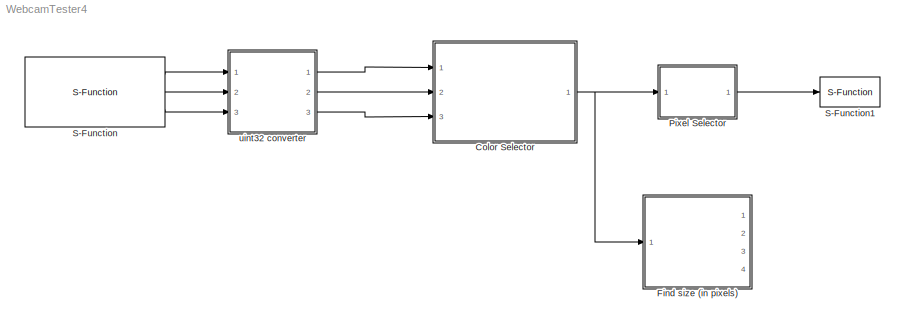
MODEL WebcamTester4
KIND model
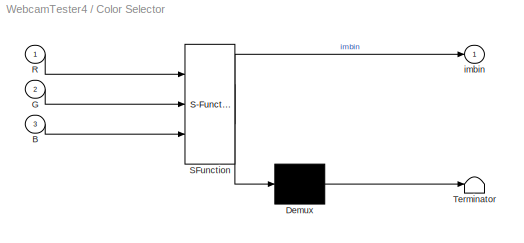
BLOCK [SubSystem] Color Selector
  ErrorFcn = Stateflow.Translate.translate
  FunctionWithSeparateData = off
  MaskDescription = Embedded MATLAB block
  MaskDisplay = disp('color_selection');
  MaskHideContents = off
  MaskIconFrame = on
  MaskIconOpaque = off
  MaskIconRotate = none
  MaskIconUnits = normalized
  MaskPortRotate = default
  MaskSelfModifiable = on
  MaskType = Stateflow
  MinAlgLoopOccurrences = off
  Opaque = off
  PermitHierarchicalResolution = ExplicitOnly
  Ports = [3, 1]
  PropExecContextOutsideSubsystem = off
  RTWSystemCode = Auto
  RequestExecContextInheritance = off
  TreatAsAtomicUnit = on
BLOCK [Demux] Color Selector/ Demux 
  Outputs = 1
  Ports = [1, 1]
BLOCK [S-Function] Color Selector/ SFunction 
  EnableBusSupport = on
  FunctionName = sf_sfun
  PortCounts = [3 2]
  Ports = [3, 2]
  Tag = Stateflow S-Function WebcamTester4 3
BLOCK [Terminator] Color Selector/ Terminator 
BLOCK [Inport] Color Selector/B
  IconDisplay = Port number
  Port = 3
BLOCK [Inport] Color Selector/G
  IconDisplay = Port number
  Port = 2
BLOCK [Inport] Color Selector/R
  IconDisplay = Port number
BLOCK [Outport] Color Selector/imbin
  IconDisplay = Port number
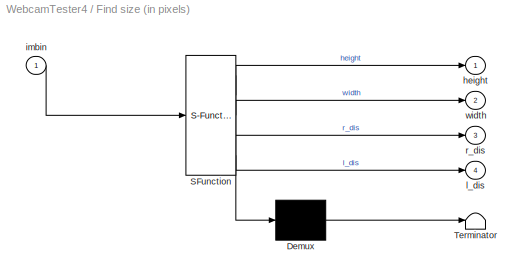
BLOCK [SubSystem] Find size (in pixels)
  ErrorFcn = Stateflow.Translate.translate
  FunctionWithSeparateData = off
  MaskDescription = Embedded MATLAB block
  MaskDisplay = disp('hw_find');
  MaskHideContents = off
  MaskIconFrame = on
  MaskIconOpaque = off
  MaskIconRotate = none
  MaskIconUnits = normalized
  MaskPortRotate = default
  MaskSelfModifiable = on
  MaskType = Stateflow
  MinAlgLoopOccurrences = off
  Opaque = off
  PermitHierarchicalResolution = ExplicitOnly
  Ports = [1, 4]
  PropExecContextOutsideSubsystem = off
  RTWSystemCode = Auto
  RequestExecContextInheritance = off
  TreatAsAtomicUnit = on
BLOCK [Demux] Find size (in pixels)/ Demux 
  Outputs = 1
  Ports = [1, 1]
BLOCK [S-Function] Find size (in pixels)/ SFunction 
  EnableBusSupport = on
  FunctionName = sf_sfun
  PortCounts = [1 5]
  Ports = [1, 5]
  Tag = Stateflow S-Function WebcamTester4 4
BLOCK [Terminator] Find size (in pixels)/ Terminator 
BLOCK [Outport] Find size (in pixels)/height
  IconDisplay = Port number
BLOCK [Inport] Find size (in pixels)/imbin
  IconDisplay = Port number
BLOCK [Outport] Find size (in pixels)/l_dis
  IconDisplay = Port number
  Port = 4
BLOCK [Outport] Find size (in pixels)/r_dis
  IconDisplay = Port number
  Port = 3
BLOCK [Outport] Find size (in pixels)/width
  IconDisplay = Port number
  Port = 2
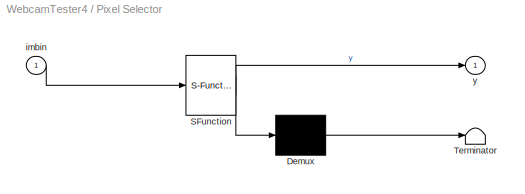
BLOCK [SubSystem] Pixel Selector
  FunctionWithSeparateData = off
  MaskDescription = Embedded MATLAB block
  MaskDisplay = disp('fcn');
  MaskHideContents = off
  MaskIconFrame = on
  MaskIconOpaque = off
  MaskIconRotate = none
  MaskIconUnits = autoscale
  MaskPortRotate = default
  MaskSelfModifiable = on
  MaskType = Stateflow
  MinAlgLoopOccurrences = off
  Opaque = off
  PermitHierarchicalResolution = ExplicitOnly
  Ports = [1, 1]
  PropExecContextOutsideSubsystem = off
  RTWSystemCode = Auto
  RequestExecContextInheritance = off
BLOCK [Demux] Pixel Selector/ Demux 
  Outputs = 1
  Ports = [1, 1]
BLOCK [S-Function] Pixel Selector/ SFunction 
  EnableBusSupport = on
  FunctionName = sf_sfun
  PortCounts = [1 2]
  Ports = [1, 2]
  Tag = Stateflow S-Function WebcamTester4 2
BLOCK [Terminator] Pixel Selector/ Terminator 
BLOCK [Inport] Pixel Selector/imbin
  IconDisplay = Port number
  OutDataType = sfix(16)
  OutScaling = 2^0
BLOCK [Outport] Pixel Selector/y
  IconDisplay = Port number
  OutDataType = sfix(16)
  OutScaling = 2^0
BLOCK [S-Function] S-Function
  EnableBusSupport = off
  FunctionName = WebcamTest
  Ports = [0, 3]
BLOCK [S-Function] S-Function1
  EnableBusSupport = off
  FunctionName = printOut
  Ports = [1]
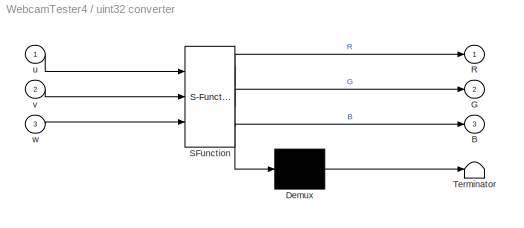
BLOCK [SubSystem] uint32 converter
  FunctionWithSeparateData = off
  MaskDescription = Embedded MATLAB block
  MaskDisplay = disp('fcn');
  MaskHideContents = off
  MaskIconFrame = on
  MaskIconOpaque = off
  MaskIconRotate = none
  MaskIconUnits = autoscale
  MaskPortRotate = default
  MaskSelfModifiable = on
  MaskType = Stateflow
  MinAlgLoopOccurrences = off
  Opaque = off
  PermitHierarchicalResolution = ExplicitOnly
  Ports = [3, 3]
  PropExecContextOutsideSubsystem = off
  RTWSystemCode = Auto
  RequestExecContextInheritance = off
BLOCK [Demux] uint32 converter/ Demux 
  Outputs = 1
  Ports = [1, 1]
BLOCK [S-Function] uint32 converter/ SFunction 
  EnableBusSupport = on
  FunctionName = sf_sfun
  PortCounts = [3 4]
  Ports = [3, 4]
  Tag = Stateflow S-Function WebcamTester4 1
BLOCK [Terminator] uint32 converter/ Terminator 
BLOCK [Outport] uint32 converter/B
  IconDisplay = Port number
  Port = 3
BLOCK [Outport] uint32 converter/G
  IconDisplay = Port number
  Port = 2
BLOCK [Outport] uint32 converter/R
  IconDisplay = Port number
  OutDataType = sfix(16)
  OutScaling = 2^0
BLOCK [Inport] uint32 converter/u
  IconDisplay = Port number
  OutDataType = sfix(16)
  OutScaling = 2^0
BLOCK [Inport] uint32 converter/v
  IconDisplay = Port number
  Port = 2
BLOCK [Inport] uint32 converter/w
  IconDisplay = Port number
  Port = 3
LINE Color Selector/ Demux :1 -> Color Selector/ Terminator :1
LINE Color Selector/ SFunction :1 -> Color Selector/ Demux :1
LINE Color Selector/ SFunction :2 -> Color Selector/imbin:1
LINE Color Selector/B:1 -> Color Selector/ SFunction :3
LINE Color Selector/G:1 -> Color Selector/ SFunction :2
LINE Color Selector/R:1 -> Color Selector/ SFunction :1
NET Color Selector:1 -> Find size (in pixels):1, Pixel Selector:1
LINE Find size (in pixels)/ Demux :1 -> Find size (in pixels)/ Terminator :1
LINE Find size (in pixels)/ SFunction :1 -> Find size (in pixels)/ Demux :1
LINE Find size (in pixels)/ SFunction :2 -> Find size (in pixels)/height:1
LINE Find size (in pixels)/ SFunction :3 -> Find size (in pixels)/width:1
LINE Find size (in pixels)/ SFunction :4 -> Find size (in pixels)/r_dis:1
LINE Find size (in pixels)/ SFunction :5 -> Find size (in pixels)/l_dis:1
LINE Find size (in pixels)/imbin:1 -> Find size (in pixels)/ SFunction :1
LINE Pixel Selector/ Demux :1 -> Pixel Selector/ Terminator :1
LINE Pixel Selector/ SFunction :1 -> Pixel Selector/ Demux :1
LINE Pixel Selector/ SFunction :2 -> Pixel Selector/y:1
LINE Pixel Selector/imbin:1 -> Pixel Selector/ SFunction :1
LINE Pixel Selector:1 -> S-Function1:1
LINE S-Function:1 -> uint32 converter:1
LINE S-Function:2 -> uint32 converter:2
LINE S-Function:3 -> uint32 converter:3
LINE uint32 converter/ Demux :1 -> uint32 converter/ Terminator :1
LINE uint32 converter/ SFunction :1 -> uint32 converter/ Demux :1
LINE uint32 converter/ SFunction :2 -> uint32 converter/R:1
LINE uint32 converter/ SFunction :3 -> uint32 converter/G:1
LINE uint32 converter/ SFunction :4 -> uint32 converter/B:1
LINE uint32 converter/u:1 -> uint32 converter/ SFunction :1
LINE uint32 converter/v:1 -> uint32 converter/ SFunction :2
LINE uint32 converter/w:1 -> uint32 converter/ SFunction :3
LINE uint32 converter:1 -> Color Selector:1
LINE uint32 converter:2 -> Color Selector:2
LINE uint32 converter:3 -> Color Selector:3
note: NET lines group one-source signal fan-out (src -> all destinations, sorted); 1:1 wires keep LINE
CHART uint32 converter states=1 transitions=1
  STATE_LABEL 'eML_blk_kernel()'
CHART Pixel Selector states=1 transitions=1
  STATE_LABEL 'eML_blk_kernel()'
CHART Color Selector states=1 transitions=1
  STATE_LABEL 'eML_blk_kernel()'
CHART Find size (in pixels) states=1 transitions=1
  STATE_LABEL 'eML_blk_kernel()'
